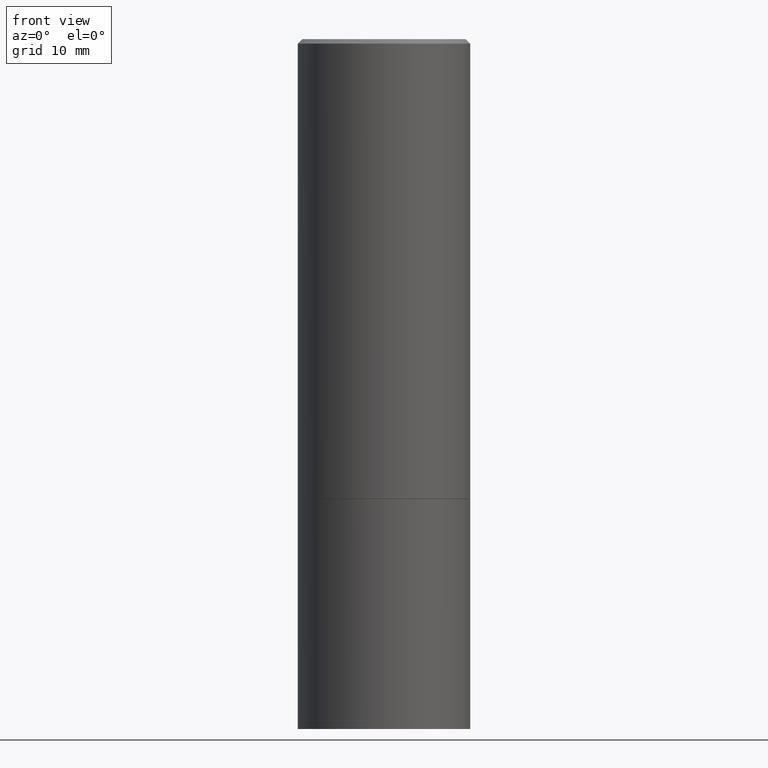
[diagram: clean part render]
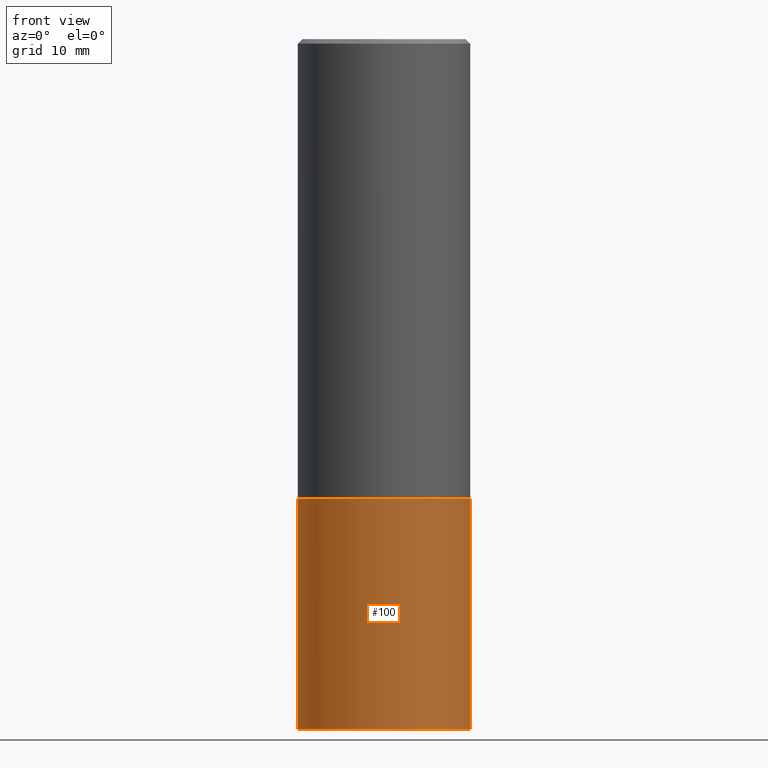
[diagram: same view with one face highlighted and labeled with its STEP entity id]
A machine part, front view. The second image highlights one B-rep face of the part: STEP entity #100.
In plain terms, the highlighted cylindrical surface (partial cylindrical patch) has radius 9.525 mm, axis along (-0, 0, 1).
Its self-contained STEP definition (entity closure, byte-faithful):
#21 = ORIENTED_EDGE ( 'NONE', *, *, #165, .F. ) ;
#30 = LINE ( 'NONE', #198, #38 ) ;
#31 = EDGE_CURVE ( 'NONE', #222, #49, #151, .T. ) ;
#38 = VECTOR ( 'NONE', #142, 39.37007874015748143 ) ;
#49 = VERTEX_POINT ( 'NONE', #344 ) ;
#53 = CARTESIAN_POINT ( 'NONE',  ( -0.3750000000000000555, -6.064168088007489246E-15, -2.000000000000000444 ) ) ;
#54 = DIRECTION ( 'NONE',  ( 1.000000000000000000, -6.982962677686266711E-15, 0.000000000000000000 ) ) ;
#67 = VERTEX_POINT ( 'NONE', #91 ) ;
#68 = AXIS2_PLACEMENT_3D ( 'NONE', #315, #183, #258 ) ;
#91 = CARTESIAN_POINT ( 'NONE',  ( -0.3750000000000000555, -6.064168088007489246E-15, -3.000000000000000444 ) ) ;
#100 = ADVANCED_FACE ( 'NONE', ( #284 ), #124, .T. ) ;
#108 = ORIENTED_EDGE ( 'NONE', *, *, #31, .T. ) ;
#111 = VERTEX_POINT ( 'NONE', #53 ) ;
#112 = CARTESIAN_POINT ( 'NONE',  ( 7.336406418555409790E-29, -1.047444401652943635E-14, -3.000000000000000444 ) ) ;
#124 = CYLINDRICAL_SURFACE ( 'NONE', #68, 0.3750000000000000555 ) ;
#132 = CARTESIAN_POINT ( 'NONE',  ( 4.890937612370273754E-29, -6.982962677686291954E-15, -2.000000000000000444 ) ) ;
#139 = VECTOR ( 'NONE', #180, 39.37007874015748143 ) ;
#142 = DIRECTION ( 'NONE',  ( -2.445468806185136877E-29, 3.491481338843145188E-15, 1.000000000000000000 ) ) ;
#151 = LINE ( 'NONE', #233, #139 ) ;
#165 = EDGE_CURVE ( 'NONE', #111, #49, #231, .T. ) ;
#177 = DIRECTION ( 'NONE',  ( -2.445468806185136597E-29, 3.491481338843145583E-15, 1.000000000000000000 ) ) ;
#180 = DIRECTION ( 'NONE',  ( -2.445468806185136877E-29, 3.491481338843145188E-15, 1.000000000000000000 ) ) ;
#183 = DIRECTION ( 'NONE',  ( -2.445468806185136597E-29, 3.491481338843145583E-15, 1.000000000000000000 ) ) ;
#198 = CARTESIAN_POINT ( 'NONE',  ( -0.3750000000000000555, 2.664535259100376091E-15, -1.844600658845589598E-29 ) ) ;
#210 = DIRECTION ( 'NONE',  ( -2.445468806185136597E-29, 3.491481338843145583E-15, 1.000000000000000000 ) ) ;
#214 = AXIS2_PLACEMENT_3D ( 'NONE', #132, #210, #327 ) ;
#219 = CARTESIAN_POINT ( 'NONE',  ( 0.3750000000000000555, -1.309305502066178795E-14, -3.000000000000000444 ) ) ;
#222 = VERTEX_POINT ( 'NONE', #219 ) ;
#231 = CIRCLE ( 'NONE', #214, 0.3750000000000000555 ) ;
#233 = CARTESIAN_POINT ( 'NONE',  ( 0.3750000000000000555, -2.618611004132350016E-15, 1.828566290923476203E-29 ) ) ;
#246 = EDGE_LOOP ( 'NONE', ( #360, #275, #108, #21 ) ) ;
#258 = DIRECTION ( 'NONE',  ( 1.000000000000000000, -6.982962677686265922E-15, 4.876176775795935793E-29 ) ) ;
#260 = EDGE_CURVE ( 'NONE', #67, #222, #343, .T. ) ;
#275 = ORIENTED_EDGE ( 'NONE', *, *, #260, .T. ) ;
#284 = FACE_OUTER_BOUND ( 'NONE', #246, .T. ) ;
#290 = EDGE_CURVE ( 'NONE', #67, #111, #30, .T. ) ;
#315 = CARTESIAN_POINT ( 'NONE',  ( 0.000000000000000000, 0.000000000000000000, 0.000000000000000000 ) ) ;
#327 = DIRECTION ( 'NONE',  ( 1.000000000000000000, -6.982962677686266711E-15, 0.000000000000000000 ) ) ;
#343 = CIRCLE ( 'NONE', #351, 0.3750000000000000555 ) ;
#344 = CARTESIAN_POINT ( 'NONE',  ( 0.3750000000000000555, -9.601573681818641971E-15, -2.000000000000000444 ) ) ;
#351 = AXIS2_PLACEMENT_3D ( 'NONE', #112, #177, #54 ) ;
#360 = ORIENTED_EDGE ( 'NONE', *, *, #290, .F. ) ;